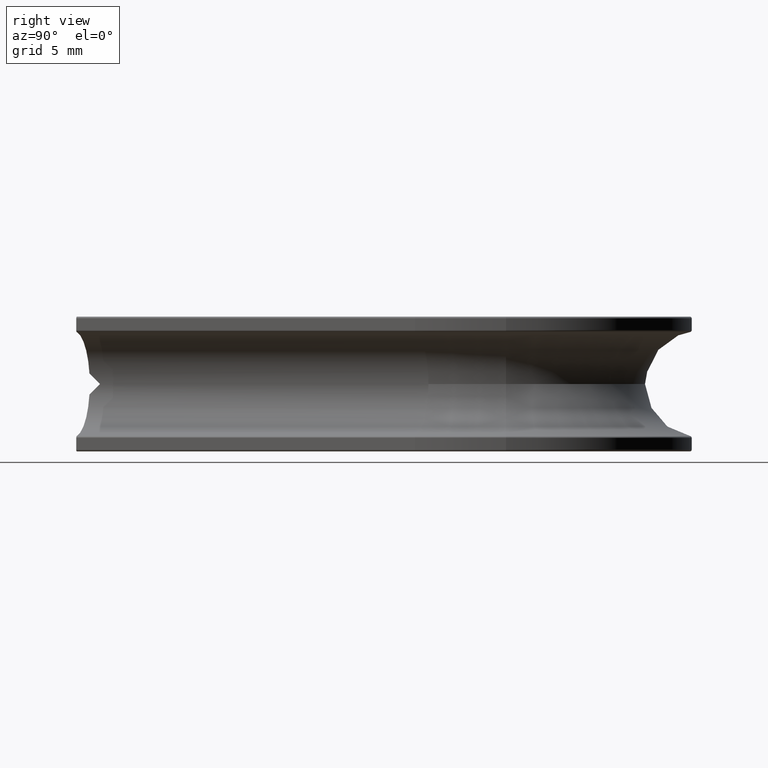
[diagram: clean part render]
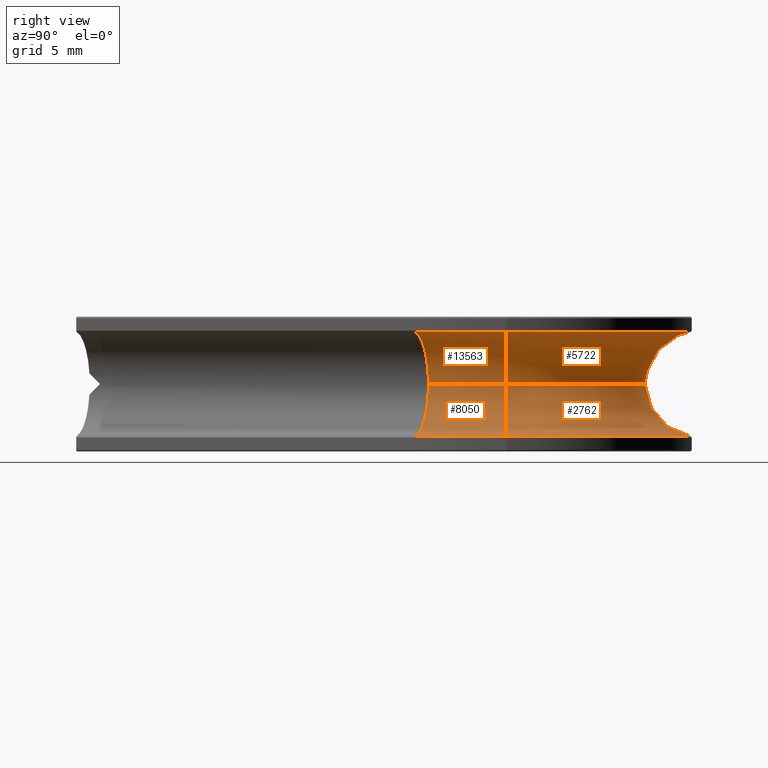
[diagram: same view with one multi-face feature highlighted, each face labeled with its STEP entity id]
A machine part, right view. The highlighted faces form ONE feature: a constant-radius fillet chain: 4 tangent blend faces with common blend radius 2.75 mm. The faces share edges in the B-rep.
Their STEP definitions:
[1] entity #2762 (Torus):
#451 = CIRCLE ( 'NONE', #14064, 7.300000000000003400 ) ;
#745 = VERTEX_POINT ( 'NONE', #7006 ) ;
#1511 = EDGE_CURVE ( 'NONE', #14817, #745, #12459, .T. ) ;
#1830 = EDGE_LOOP ( 'NONE', ( #4521, #6795, #2850, #8386 ) ) ;
#1870 = DIRECTION ( 'NONE',  ( 0.0000000000000000000, 0.0000000000000000000, -1.000000000000000000 ) ) ;
#2317 = CARTESIAN_POINT ( 'NONE',  ( -7.300000000000003400, 21.50000000000000000, -3.367778697655221000E-016 ) ) ;
#2762 = ADVANCED_FACE ( 'NONE', ( #13652 ), #14954, .F. ) ;
#2850 = ORIENTED_EDGE ( 'NONE', *, *, #1511, .T. ) ;
#2965 = AXIS2_PLACEMENT_3D ( 'NONE', #10062, #6689, #1870 ) ;
#3197 = DIRECTION ( 'NONE',  ( 0.0000000000000000000, 0.0000000000000000000, -1.000000000000000000 ) ) ;
#3304 = EDGE_CURVE ( 'NONE', #13242, #5694, #451, .T. ) ;
#3400 = DIRECTION ( 'NONE',  ( 1.000000000000000000, 0.0000000000000000000, 0.0000000000000000000 ) ) ;
#4510 = CARTESIAN_POINT ( 'NONE',  ( 0.0000000000000000000, 21.50000000000000000, 0.0000000000000000000 ) ) ;
#4521 = ORIENTED_EDGE ( 'NONE', *, *, #3304, .F. ) ;
#5437 = CARTESIAN_POINT ( 'NONE',  ( 0.0000000000000000000, 21.50000000000000000, -2.715503860950275100 ) ) ;
#5536 = CARTESIAN_POINT ( 'NONE',  ( -10.05000000000000400, 21.50000000000000000, 0.0000000000000000000 ) ) ;
#5544 = DIRECTION ( 'NONE',  ( 1.000000000000000000, 0.0000000000000000000, 0.0000000000000000000 ) ) ;
#5694 = VERTEX_POINT ( 'NONE', #2317 ) ;
#5911 = EDGE_CURVE ( 'NONE', #745, #5694, #6328, .T. ) ;
#6328 = CIRCLE ( 'NONE', #8389, 2.750000000000000000 ) ;
#6620 = DIRECTION ( 'NONE',  ( 0.0000000000000000000, 0.0000000000000000000, 1.000000000000000000 ) ) ;
#6689 = DIRECTION ( 'NONE',  ( 1.608122649676636600E-016, 1.000000000000000000, -0.0000000000000000000 ) ) ;
#6795 = ORIENTED_EDGE ( 'NONE', *, *, #9055, .F. ) ;
#7006 = CARTESIAN_POINT ( 'NONE',  ( -9.615789473683809900, 21.50000000000000000, -2.715503860950275100 ) ) ;
#8386 = ORIENTED_EDGE ( 'NONE', *, *, #5911, .T. ) ;
#8389 = AXIS2_PLACEMENT_3D ( 'NONE', #5536, #9101, #3197 ) ;
#8877 = AXIS2_PLACEMENT_3D ( 'NONE', #4510, #10507, #3400 ) ;
#9055 = EDGE_CURVE ( 'NONE', #14817, #13242, #14154, .T. ) ;
#9101 = DIRECTION ( 'NONE',  ( 1.608122649676636600E-016, -1.000000000000000000, 0.0000000000000000000 ) ) ;
#9584 = CARTESIAN_POINT ( 'NONE',  ( 7.300000000000004300, 21.50000000000000000, 3.367778697655222000E-016 ) ) ;
#10062 = CARTESIAN_POINT ( 'NONE',  ( 10.05000000000000400, 21.50000000000000000, 0.0000000000000000000 ) ) ;
#10507 = DIRECTION ( 'NONE',  ( 0.0000000000000000000, 0.0000000000000000000, 1.000000000000000000 ) ) ;
#11508 = CARTESIAN_POINT ( 'NONE',  ( 0.0000000000000000000, 21.50000000000000000, -3.367778697655221000E-016 ) ) ;
#12459 = CIRCLE ( 'NONE', #13664, 9.615789473684229100 ) ;
#12945 = CARTESIAN_POINT ( 'NONE',  ( 9.615789473683809900, 21.50000000000000000, -2.715503860950275100 ) ) ;
#13242 = VERTEX_POINT ( 'NONE', #9584 ) ;
#13652 = FACE_OUTER_BOUND ( 'NONE', #1830, .T. ) ;
#13664 = AXIS2_PLACEMENT_3D ( 'NONE', #5437, #6620, #14929 ) ;
#14064 = AXIS2_PLACEMENT_3D ( 'NONE', #11508, #15044, #5544 ) ;
#14154 = CIRCLE ( 'NONE', #2965, 2.750000000000000000 ) ;
#14817 = VERTEX_POINT ( 'NONE', #12945 ) ;
#14929 = DIRECTION ( 'NONE',  ( 1.000000000000000000, 0.0000000000000000000, 0.0000000000000000000 ) ) ;
#14954 = TOROIDAL_SURFACE ( 'NONE', #8877, 10.05000000000000400, 2.750000000000000000 ) ;
#15044 = DIRECTION ( 'NONE',  ( 0.0000000000000000000, 0.0000000000000000000, 1.000000000000000000 ) ) ;
[2] entity #8050 (Torus):
#330 = TOROIDAL_SURFACE ( 'NONE', #13595, 16.55000000000000100, 2.750000000000000000 ) ;
#1693 = DIRECTION ( 'NONE',  ( -0.0000000000000000000, -0.0000000000000000000, -1.000000000000000000 ) ) ;
#1870 = DIRECTION ( 'NONE',  ( 0.0000000000000000000, 0.0000000000000000000, -1.000000000000000000 ) ) ;
#1971 = ORIENTED_EDGE ( 'NONE', *, *, #12403, .T. ) ;
#2267 = DIRECTION ( 'NONE',  ( -0.0000000000000000000, -0.0000000000000000000, -1.000000000000000000 ) ) ;
#2401 = CARTESIAN_POINT ( 'NONE',  ( 6.692665036674821300, 17.45110024449877900, 3.367778697655221000E-016 ) ) ;
#2559 = AXIS2_PLACEMENT_3D ( 'NONE', #11662, #2267, #3310 ) ;
#2721 = DIRECTION ( 'NONE',  ( -1.000000000000000000, 0.0000000000000000000, 0.0000000000000000000 ) ) ;
#2965 = AXIS2_PLACEMENT_3D ( 'NONE', #10062, #6689, #1870 ) ;
#3027 = ORIENTED_EDGE ( 'NONE', *, *, #9055, .T. ) ;
#3310 = DIRECTION ( 'NONE',  ( -1.000000000000000000, 0.0000000000000000000, 0.0000000000000000000 ) ) ;
#3891 = VERTEX_POINT ( 'NONE', #2401 ) ;
#4759 = CARTESIAN_POINT ( 'NONE',  ( 9.321638141809295100, 16.64425427872861000, 0.0000000000000000000 ) ) ;
#5801 = ORIENTED_EDGE ( 'NONE', *, *, #12745, .T. ) ;
#5901 = DIRECTION ( 'NONE',  ( 0.2933985330073347600, 0.9559902200488998900, 0.0000000000000000000 ) ) ;
#6082 = FACE_OUTER_BOUND ( 'NONE', #14483, .T. ) ;
#6689 = DIRECTION ( 'NONE',  ( 1.608122649676636600E-016, 1.000000000000000000, -0.0000000000000000000 ) ) ;
#6976 = DIRECTION ( 'NONE',  ( 0.0000000000000000000, 0.0000000000000000000, -1.000000000000000000 ) ) ;
#7034 = AXIS2_PLACEMENT_3D ( 'NONE', #4759, #5901, #6976 ) ;
#8050 = ADVANCED_FACE ( 'NONE', ( #6082 ), #330, .F. ) ;
#8182 = CARTESIAN_POINT ( 'NONE',  ( 8.906537125209050400, 16.77165101016602500, -2.715503860950384300 ) ) ;
#8699 = CIRCLE ( 'NONE', #2559, 13.80000000000000200 ) ;
#9055 = EDGE_CURVE ( 'NONE', #14817, #13242, #14154, .T. ) ;
#9584 = CARTESIAN_POINT ( 'NONE',  ( 7.300000000000004300, 21.50000000000000000, 3.367778697655222000E-016 ) ) ;
#10062 = CARTESIAN_POINT ( 'NONE',  ( 10.05000000000000400, 21.50000000000000000, 0.0000000000000000000 ) ) ;
#10870 = ORIENTED_EDGE ( 'NONE', *, *, #10960, .F. ) ;
#10960 = EDGE_CURVE ( 'NONE', #12313, #3891, #13579, .T. ) ;
#11662 = CARTESIAN_POINT ( 'NONE',  ( -6.499999999999999100, 21.50000000000000000, 3.367778697655221000E-016 ) ) ;
#11694 = CIRCLE ( 'NONE', #14207, 16.11578947368421700 ) ;
#12182 = CARTESIAN_POINT ( 'NONE',  ( -6.499999999999999100, 21.50000000000000000, 0.0000000000000000000 ) ) ;
#12313 = VERTEX_POINT ( 'NONE', #8182 ) ;
#12403 = EDGE_CURVE ( 'NONE', #12313, #14817, #11694, .T. ) ;
#12745 = EDGE_CURVE ( 'NONE', #13242, #3891, #8699, .T. ) ;
#12945 = CARTESIAN_POINT ( 'NONE',  ( 9.615789473683809900, 21.50000000000000000, -2.715503860950275100 ) ) ;
#13242 = VERTEX_POINT ( 'NONE', #9584 ) ;
#13579 = CIRCLE ( 'NONE', #7034, 2.750000000000000000 ) ;
#13595 = AXIS2_PLACEMENT_3D ( 'NONE', #12182, #1693, #2721 ) ;
#14154 = CIRCLE ( 'NONE', #2965, 2.750000000000000000 ) ;
#14207 = AXIS2_PLACEMENT_3D ( 'NONE', #14417, #14518, #14625 ) ;
#14417 = CARTESIAN_POINT ( 'NONE',  ( -6.499999999999999100, 21.50000000000000000, -2.715503860950384300 ) ) ;
#14483 = EDGE_LOOP ( 'NONE', ( #3027, #5801, #10870, #1971 ) ) ;
#14518 = DIRECTION ( 'NONE',  ( 0.0000000000000000000, 0.0000000000000000000, 1.000000000000000000 ) ) ;
#14625 = DIRECTION ( 'NONE',  ( 1.000000000000000000, 0.0000000000000000000, 0.0000000000000000000 ) ) ;
#14817 = VERTEX_POINT ( 'NONE', #12945 ) ;
[3] entity #13563 (Torus):
#99 = CARTESIAN_POINT ( 'NONE',  ( -6.499999999999999100, 21.50000000000000000, 2.715503860950734300 ) ) ;
#531 = CARTESIAN_POINT ( 'NONE',  ( -6.499999999999999100, 21.50000000000000000, 0.0000000000000000000 ) ) ;
#922 = EDGE_CURVE ( 'NONE', #13242, #1458, #3724, .T. ) ;
#1458 = VERTEX_POINT ( 'NONE', #11296 ) ;
#1592 = DIRECTION ( 'NONE',  ( 0.2933985330073347600, 0.9559902200488998900, 0.0000000000000000000 ) ) ;
#2267 = DIRECTION ( 'NONE',  ( -0.0000000000000000000, -0.0000000000000000000, -1.000000000000000000 ) ) ;
#2401 = CARTESIAN_POINT ( 'NONE',  ( 6.692665036674821300, 17.45110024449877900, 3.367778697655221000E-016 ) ) ;
#2559 = AXIS2_PLACEMENT_3D ( 'NONE', #11662, #2267, #3310 ) ;
#2840 = DIRECTION ( 'NONE',  ( -1.000000000000000000, 0.0000000000000000000, 0.0000000000000000000 ) ) ;
#3281 = AXIS2_PLACEMENT_3D ( 'NONE', #531, #6330, #3993 ) ;
#3310 = DIRECTION ( 'NONE',  ( -1.000000000000000000, 0.0000000000000000000, 0.0000000000000000000 ) ) ;
#3378 = EDGE_LOOP ( 'NONE', ( #8110, #10344, #9256, #7751 ) ) ;
#3724 = CIRCLE ( 'NONE', #5223, 2.750000000000000000 ) ;
#3891 = VERTEX_POINT ( 'NONE', #2401 ) ;
#3993 = DIRECTION ( 'NONE',  ( -1.000000000000000000, 0.0000000000000000000, 0.0000000000000000000 ) ) ;
#5175 = FACE_OUTER_BOUND ( 'NONE', #3378, .T. ) ;
#5223 = AXIS2_PLACEMENT_3D ( 'NONE', #5906, #12970, #14139 ) ;
#5906 = CARTESIAN_POINT ( 'NONE',  ( 10.05000000000000400, 21.50000000000000000, 0.0000000000000000000 ) ) ;
#6330 = DIRECTION ( 'NONE',  ( -0.0000000000000000000, -0.0000000000000000000, -1.000000000000000000 ) ) ;
#6763 = CARTESIAN_POINT ( 'NONE',  ( 8.906537125210066500, 16.77165101016571600, 2.715503860950734300 ) ) ;
#7751 = ORIENTED_EDGE ( 'NONE', *, *, #15187, .F. ) ;
#8110 = ORIENTED_EDGE ( 'NONE', *, *, #12745, .F. ) ;
#8699 = CIRCLE ( 'NONE', #2559, 13.80000000000000200 ) ;
#9256 = ORIENTED_EDGE ( 'NONE', *, *, #9458, .T. ) ;
#9458 = EDGE_CURVE ( 'NONE', #1458, #14730, #10667, .T. ) ;
#9584 = CARTESIAN_POINT ( 'NONE',  ( 7.300000000000004300, 21.50000000000000000, 3.367778697655222000E-016 ) ) ;
#10141 = DIRECTION ( 'NONE',  ( -0.0000000000000000000, -0.0000000000000000000, -1.000000000000000000 ) ) ;
#10344 = ORIENTED_EDGE ( 'NONE', *, *, #922, .T. ) ;
#10667 = CIRCLE ( 'NONE', #14905, 16.11578947368415600 ) ;
#10701 = CIRCLE ( 'NONE', #12147, 2.750000000000000000 ) ;
#11041 = CARTESIAN_POINT ( 'NONE',  ( 9.321638141809295100, 16.64425427872861000, 0.0000000000000000000 ) ) ;
#11296 = CARTESIAN_POINT ( 'NONE',  ( 9.615789473683809900, 21.50000000000000000, 2.715503860950275100 ) ) ;
#11662 = CARTESIAN_POINT ( 'NONE',  ( -6.499999999999999100, 21.50000000000000000, 3.367778697655221000E-016 ) ) ;
#12042 = TOROIDAL_SURFACE ( 'NONE', #3281, 16.55000000000000100, 2.750000000000000000 ) ;
#12147 = AXIS2_PLACEMENT_3D ( 'NONE', #11041, #1592, #14728 ) ;
#12745 = EDGE_CURVE ( 'NONE', #13242, #3891, #8699, .T. ) ;
#12970 = DIRECTION ( 'NONE',  ( 1.608122649676636600E-016, 1.000000000000000000, -0.0000000000000000000 ) ) ;
#13242 = VERTEX_POINT ( 'NONE', #9584 ) ;
#13563 = ADVANCED_FACE ( 'NONE', ( #5175 ), #12042, .F. ) ;
#14139 = DIRECTION ( 'NONE',  ( 0.0000000000000000000, 0.0000000000000000000, -1.000000000000000000 ) ) ;
#14728 = DIRECTION ( 'NONE',  ( 0.0000000000000000000, 0.0000000000000000000, -1.000000000000000000 ) ) ;
#14730 = VERTEX_POINT ( 'NONE', #6763 ) ;
#14905 = AXIS2_PLACEMENT_3D ( 'NONE', #99, #10141, #2840 ) ;
#15187 = EDGE_CURVE ( 'NONE', #3891, #14730, #10701, .T. ) ;
[4] entity #5722 (Torus):
#451 = CIRCLE ( 'NONE', #14064, 7.300000000000003400 ) ;
#922 = EDGE_CURVE ( 'NONE', #13242, #1458, #3724, .T. ) ;
#1378 = EDGE_LOOP ( 'NONE', ( #13714, #14321, #5325, #8226 ) ) ;
#1458 = VERTEX_POINT ( 'NONE', #11296 ) ;
#1480 = AXIS2_PLACEMENT_3D ( 'NONE', #8522, #4969, #8636 ) ;
#1677 = DIRECTION ( 'NONE',  ( 0.0000000000000000000, 0.0000000000000000000, -1.000000000000000000 ) ) ;
#1782 = DIRECTION ( 'NONE',  ( 1.608122649676636600E-016, -1.000000000000000000, 0.0000000000000000000 ) ) ;
#2317 = CARTESIAN_POINT ( 'NONE',  ( -7.300000000000003400, 21.50000000000000000, -3.367778697655221000E-016 ) ) ;
#2368 = DIRECTION ( 'NONE',  ( 0.0000000000000000000, 0.0000000000000000000, 1.000000000000000000 ) ) ;
#3304 = EDGE_CURVE ( 'NONE', #13242, #5694, #451, .T. ) ;
#3441 = EDGE_CURVE ( 'NONE', #5694, #11093, #13680, .T. ) ;
#3724 = CIRCLE ( 'NONE', #5223, 2.750000000000000000 ) ;
#4666 = DIRECTION ( 'NONE',  ( 1.000000000000000000, 0.0000000000000000000, 0.0000000000000000000 ) ) ;
#4969 = DIRECTION ( 'NONE',  ( -0.0000000000000000000, -0.0000000000000000000, -1.000000000000000000 ) ) ;
#5223 = AXIS2_PLACEMENT_3D ( 'NONE', #5906, #12970, #14139 ) ;
#5246 = AXIS2_PLACEMENT_3D ( 'NONE', #15065, #2368, #4666 ) ;
#5325 = ORIENTED_EDGE ( 'NONE', *, *, #3441, .T. ) ;
#5544 = DIRECTION ( 'NONE',  ( 1.000000000000000000, 0.0000000000000000000, 0.0000000000000000000 ) ) ;
#5694 = VERTEX_POINT ( 'NONE', #2317 ) ;
#5722 = ADVANCED_FACE ( 'NONE', ( #11162 ), #11537, .F. ) ;
#5906 = CARTESIAN_POINT ( 'NONE',  ( 10.05000000000000400, 21.50000000000000000, 0.0000000000000000000 ) ) ;
#6120 = CIRCLE ( 'NONE', #1480, 9.615789473684229100 ) ;
#8226 = ORIENTED_EDGE ( 'NONE', *, *, #12414, .T. ) ;
#8522 = CARTESIAN_POINT ( 'NONE',  ( 0.0000000000000000000, 21.50000000000000000, 2.715503860950275100 ) ) ;
#8636 = DIRECTION ( 'NONE',  ( -1.000000000000000000, 0.0000000000000000000, 0.0000000000000000000 ) ) ;
#9584 = CARTESIAN_POINT ( 'NONE',  ( 7.300000000000004300, 21.50000000000000000, 3.367778697655222000E-016 ) ) ;
#9660 = CARTESIAN_POINT ( 'NONE',  ( -9.615789473683809900, 21.50000000000000000, 2.715503860950275100 ) ) ;
#10597 = AXIS2_PLACEMENT_3D ( 'NONE', #13501, #1782, #1677 ) ;
#11093 = VERTEX_POINT ( 'NONE', #9660 ) ;
#11162 = FACE_OUTER_BOUND ( 'NONE', #1378, .T. ) ;
#11296 = CARTESIAN_POINT ( 'NONE',  ( 9.615789473683809900, 21.50000000000000000, 2.715503860950275100 ) ) ;
#11508 = CARTESIAN_POINT ( 'NONE',  ( 0.0000000000000000000, 21.50000000000000000, -3.367778697655221000E-016 ) ) ;
#11537 = TOROIDAL_SURFACE ( 'NONE', #5246, 10.05000000000000400, 2.750000000000000000 ) ;
#12414 = EDGE_CURVE ( 'NONE', #11093, #1458, #6120, .T. ) ;
#12970 = DIRECTION ( 'NONE',  ( 1.608122649676636600E-016, 1.000000000000000000, -0.0000000000000000000 ) ) ;
#13242 = VERTEX_POINT ( 'NONE', #9584 ) ;
#13501 = CARTESIAN_POINT ( 'NONE',  ( -10.05000000000000400, 21.50000000000000000, 0.0000000000000000000 ) ) ;
#13680 = CIRCLE ( 'NONE', #10597, 2.750000000000000000 ) ;
#13714 = ORIENTED_EDGE ( 'NONE', *, *, #922, .F. ) ;
#14064 = AXIS2_PLACEMENT_3D ( 'NONE', #11508, #15044, #5544 ) ;
#14139 = DIRECTION ( 'NONE',  ( 0.0000000000000000000, 0.0000000000000000000, -1.000000000000000000 ) ) ;
#14321 = ORIENTED_EDGE ( 'NONE', *, *, #3304, .T. ) ;
#15044 = DIRECTION ( 'NONE',  ( 0.0000000000000000000, 0.0000000000000000000, 1.000000000000000000 ) ) ;
#15065 = CARTESIAN_POINT ( 'NONE',  ( 0.0000000000000000000, 21.50000000000000000, 0.0000000000000000000 ) ) ;